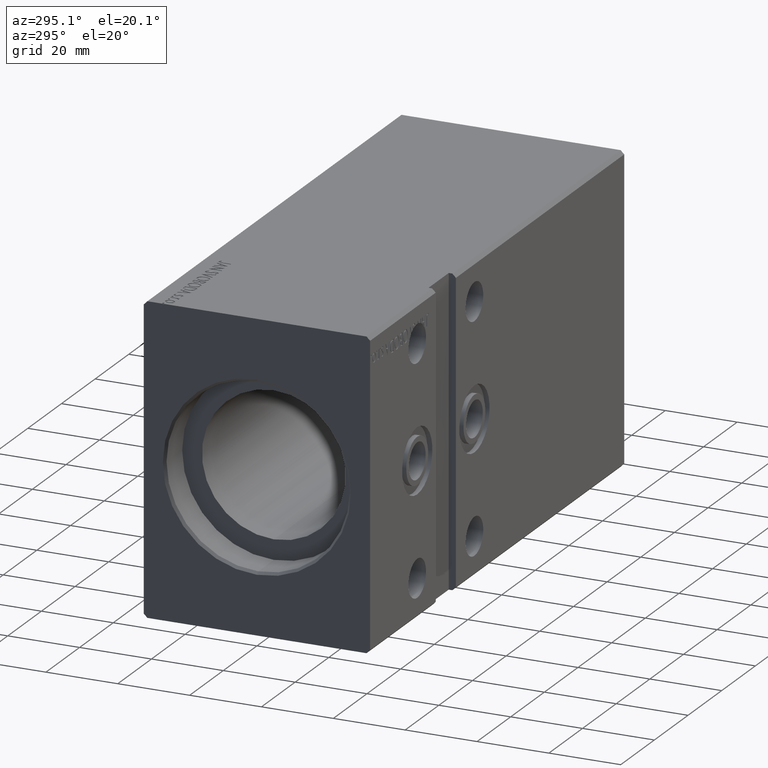
[diagram: clean part render]
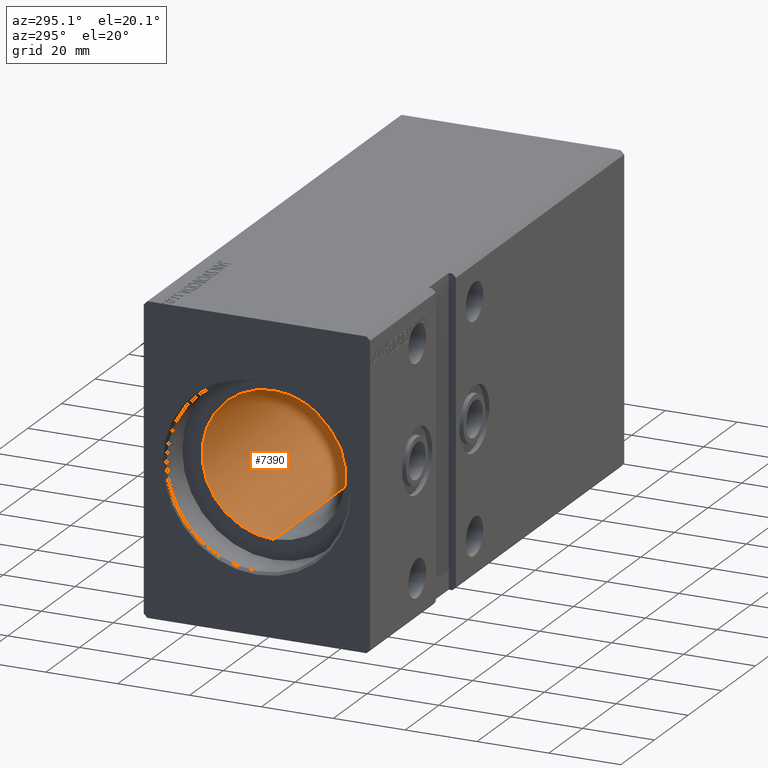
[diagram: same view with one face highlighted and labeled with its STEP entity id]
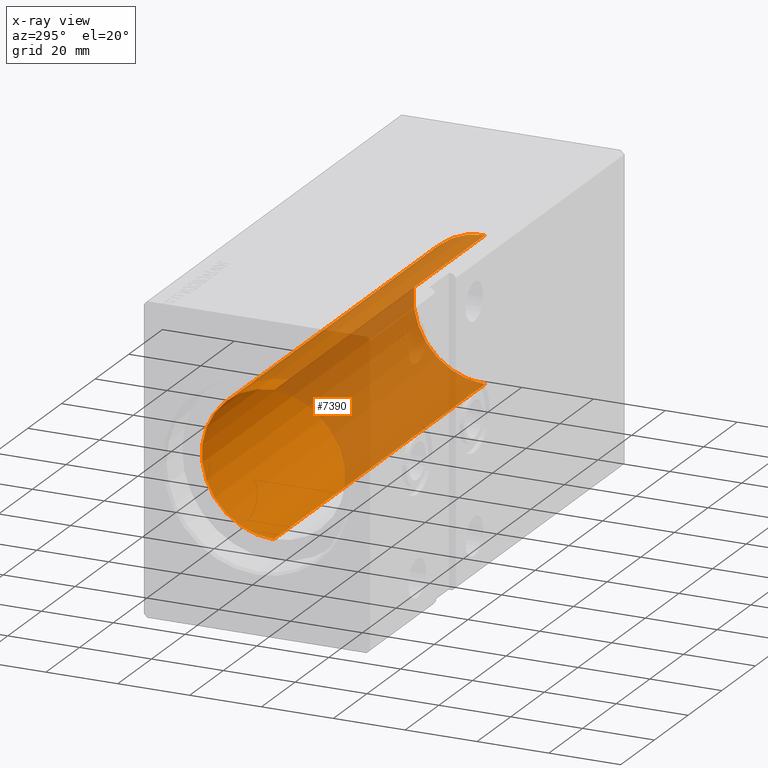
[diagram: x-ray of the same camera — body ghosted, the highlighted face saturated]
A machine part, auxiliary view. The second image highlights one B-rep face of the part: STEP entity #7390.
The next image is the same camera in x-ray: the body ghosted, the highlighted face saturated — about 58% of this face is hidden behind the body in this view.
In plain terms, the highlighted cylindrical surface (partial cylindrical patch) has radius 20 mm, axis along (-1, -0, -0).
Its self-contained STEP definition (entity closure, byte-faithful):
#247 = CIRCLE ( 'NONE', #23198, 20.00000000000000000 ) ;
#400 = VECTOR ( 'NONE', #33809, 1000.000000000000000 ) ;
#2222 = EDGE_CURVE ( 'NONE', #39710, #26120, #30611, .T. ) ;
#2924 = CARTESIAN_POINT ( 'NONE',  ( 135.6999999999999886, 0.000000000000000000, 0.000000000000000000 ) ) ;
#3213 = DIRECTION ( 'NONE',  ( 0.000000000000000000, 0.000000000000000000, 1.000000000000000000 ) ) ;
#4023 = CARTESIAN_POINT ( 'NONE',  ( 135.6999999999999886, 2.449293598294706513E-15, -20.00000000000000000 ) ) ;
#5731 = CARTESIAN_POINT ( 'NONE',  ( 135.6999999999999886, 2.449293598294706513E-15, -20.00000000000000000 ) ) ;
#6280 = CARTESIAN_POINT ( 'NONE',  ( 10.00000000000000888, 0.000000000000000000, 0.000000000000000000 ) ) ;
#7289 = VERTEX_POINT ( 'NONE', #20520 ) ;
#7390 = ADVANCED_FACE ( 'NONE', ( #12467 ), #15957, .F. ) ;
#9436 = CIRCLE ( 'NONE', #36358, 20.00000000000000000 ) ;
#10334 = EDGE_LOOP ( 'NONE', ( #23280, #14443, #36748, #26712 ) ) ;
#11730 = VECTOR ( 'NONE', #25052, 1000.000000000000000 ) ;
#12207 = CARTESIAN_POINT ( 'NONE',  ( 135.6999999999999886, 0.000000000000000000, 20.00000000000000000 ) ) ;
#12374 = CARTESIAN_POINT ( 'NONE',  ( 10.00000000000000888, 2.449293598294706513E-15, -20.00000000000000000 ) ) ;
#12467 = FACE_OUTER_BOUND ( 'NONE', #10334, .T. ) ;
#14443 = ORIENTED_EDGE ( 'NONE', *, *, #22457, .F. ) ;
#15455 = DIRECTION ( 'NONE',  ( 0.000000000000000000, 0.000000000000000000, 1.000000000000000000 ) ) ;
#15957 = CYLINDRICAL_SURFACE ( 'NONE', #36715, 20.00000000000000000 ) ;
#18410 = DIRECTION ( 'NONE',  ( 0.000000000000000000, 0.000000000000000000, 1.000000000000000000 ) ) ;
#18986 = LINE ( 'NONE', #12207, #400 ) ;
#20520 = CARTESIAN_POINT ( 'NONE',  ( 10.00000000000000888, 0.000000000000000000, 20.00000000000000000 ) ) ;
#22457 = EDGE_CURVE ( 'NONE', #39251, #39710, #247, .T. ) ;
#23198 = AXIS2_PLACEMENT_3D ( 'NONE', #2924, #40139, #15455 ) ;
#23280 = ORIENTED_EDGE ( 'NONE', *, *, #2222, .F. ) ;
#25052 = DIRECTION ( 'NONE',  ( -1.000000000000000000, -0.000000000000000000, -0.000000000000000000 ) ) ;
#26120 = VERTEX_POINT ( 'NONE', #12374 ) ;
#26712 = ORIENTED_EDGE ( 'NONE', *, *, #36368, .T. ) ;
#28263 = DIRECTION ( 'NONE',  ( -1.000000000000000000, 0.000000000000000000, 0.000000000000000000 ) ) ;
#29356 = EDGE_CURVE ( 'NONE', #39251, #7289, #18986, .T. ) ;
#30611 = LINE ( 'NONE', #5731, #11730 ) ;
#31372 = CARTESIAN_POINT ( 'NONE',  ( 135.6999999999999886, 0.000000000000000000, 0.000000000000000000 ) ) ;
#33809 = DIRECTION ( 'NONE',  ( -1.000000000000000000, -0.000000000000000000, -0.000000000000000000 ) ) ;
#34259 = DIRECTION ( 'NONE',  ( -1.000000000000000000, -0.000000000000000000, -0.000000000000000000 ) ) ;
#36358 = AXIS2_PLACEMENT_3D ( 'NONE', #6280, #28263, #18410 ) ;
#36368 = EDGE_CURVE ( 'NONE', #7289, #26120, #9436, .T. ) ;
#36715 = AXIS2_PLACEMENT_3D ( 'NONE', #31372, #34259, #3213 ) ;
#36748 = ORIENTED_EDGE ( 'NONE', *, *, #29356, .T. ) ;
#37605 = CARTESIAN_POINT ( 'NONE',  ( 135.6999999999999886, 0.000000000000000000, 20.00000000000000000 ) ) ;
#39251 = VERTEX_POINT ( 'NONE', #37605 ) ;
#39710 = VERTEX_POINT ( 'NONE', #4023 ) ;
#40139 = DIRECTION ( 'NONE',  ( -1.000000000000000000, 0.000000000000000000, 0.000000000000000000 ) ) ;